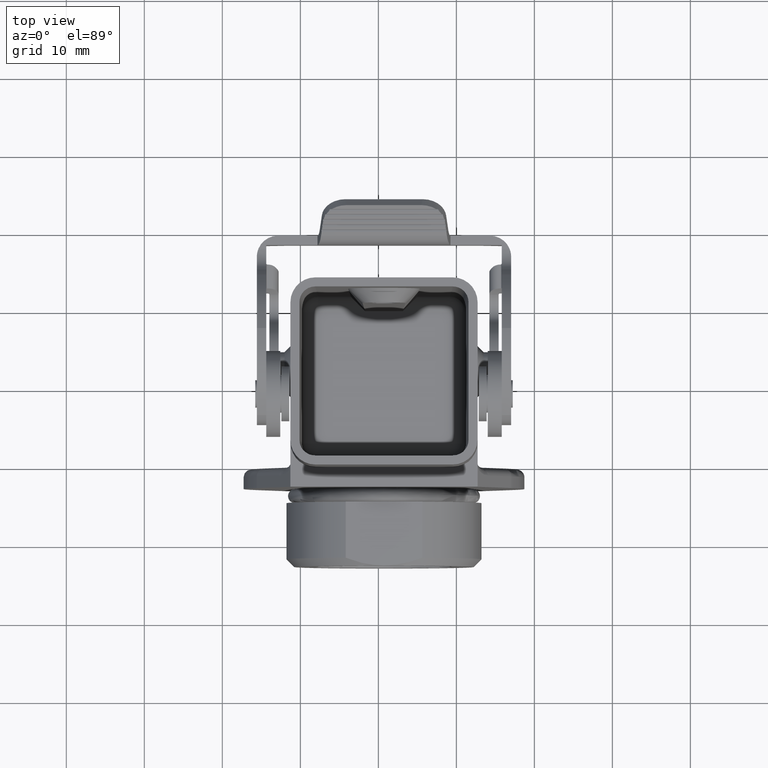
[diagram: clean part render]
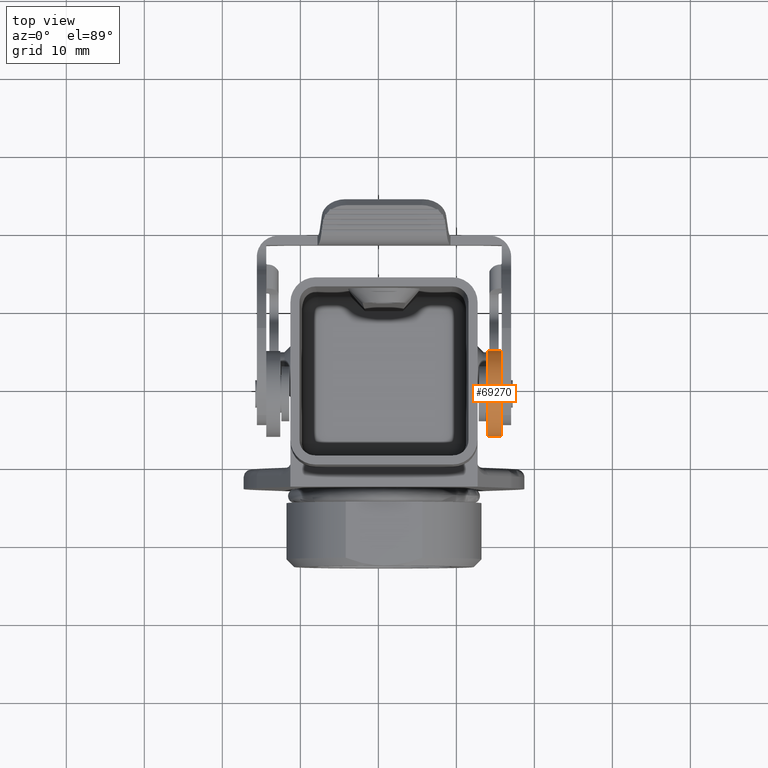
[diagram: same view with one face highlighted and labeled with its STEP entity id]
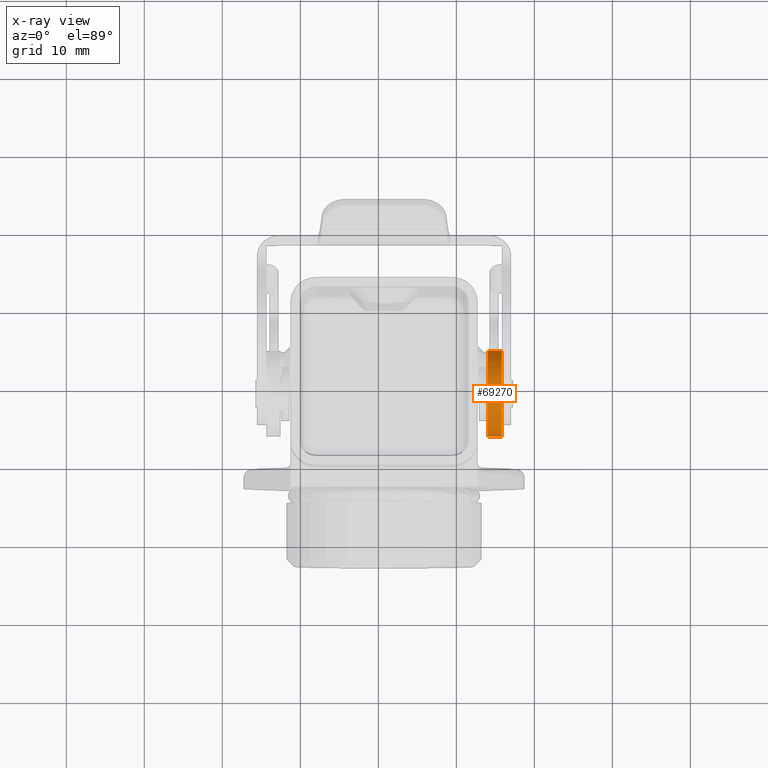
[diagram: x-ray of the same camera — body ghosted, the highlighted face saturated]
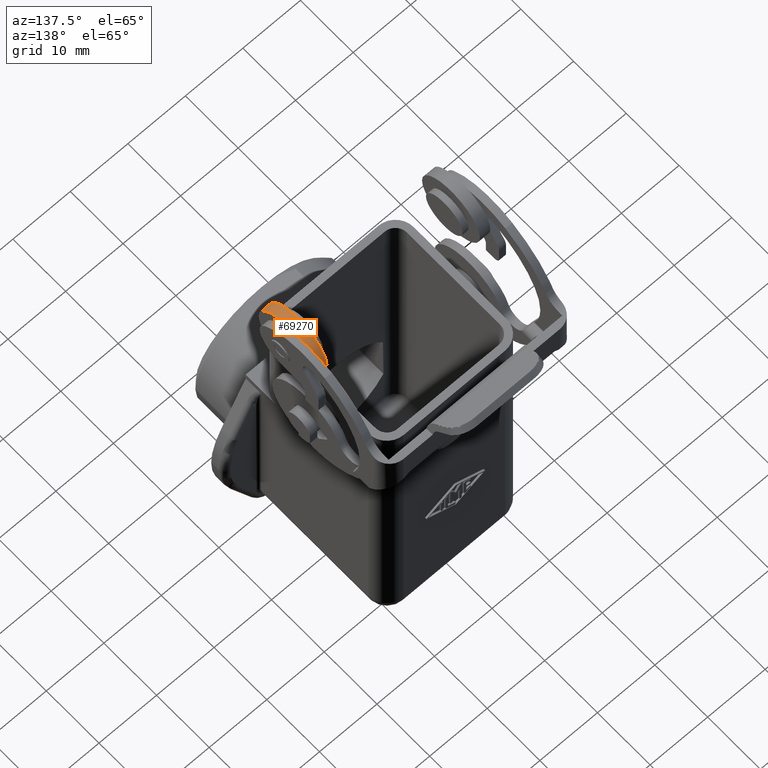
[diagram: same view with one face highlighted and labeled with its STEP entity id]
A machine part, top view. The second image highlights one B-rep face of the part: STEP entity #69270.
The next image is the same camera in x-ray: the body ghosted, the highlighted face saturated — about 0% of this face is hidden behind the body in this view.
A second angle (auxiliary view) of the same face is appended — the face is thin or edge-on in the first view.
In plain terms, the highlighted cylindrical surface (partial cylindrical patch) has radius 5.5 mm, axis along (1, -0, -0).
Its self-contained STEP definition (entity closure, byte-faithful):
#33700=CARTESIAN_POINT('',(44.067841872355,26.3662659228829,-3.E-15));
#33710=VERTEX_POINT('',#33700);
#33740=CARTESIAN_POINT('',(42.5864099933115,21.0695348944321,0.));
#33750=DIRECTION('',(0.,0.,1.));
#33760=DIRECTION('',(1.,0.,-0.));
#33770=AXIS2_PLACEMENT_3D('',#33740,#33750,#33760);
#33780=CIRCLE('',#33770,5.49999999999999);
#33790=CARTESIAN_POINT('',(47.3999088620375,23.7304047974474,-3.E-15));
#33800=VERTEX_POINT('',#33790);
#33810=EDGE_CURVE('',#33800,#33710,#33780,.T.);
#35890=CARTESIAN_POINT('',(42.5864099933115,21.0695348944321,
-2.66453525910038E-15));
#35900=DIRECTION('',(0.,0.,1.));
#35910=DIRECTION('',(1.,0.,-0.));
#35920=AXIS2_PLACEMENT_3D('',#35890,#35900,#35910);
#35930=CIRCLE('',#35920,5.49999999999999);
#35940=CARTESIAN_POINT('',(37.0864099933115,21.0695348944321,
-2.66453525910038E-15));
#35950=VERTEX_POINT('',#35940);
#35980=EDGE_CURVE('',#33710,#35950,#35930,.T.);
#66100=CARTESIAN_POINT('',(42.5864099933115,21.0695348944321,
-2.66453525910038E-15));
#66110=DIRECTION('',(0.,0.,1.));
#66120=DIRECTION('',(1.,0.,-0.));
#66130=AXIS2_PLACEMENT_3D('',#66100,#66110,#66120);
#66140=CIRCLE('',#66130,5.49999999999999);
#66150=CARTESIAN_POINT('',(48.0864099933115,21.0695348944321,
-2.66453525910038E-15));
#66160=VERTEX_POINT('',#66150);
#66230=EDGE_CURVE('',#66160,#33800,#66140,.T.);
#66350=CARTESIAN_POINT('',(42.5864099933115,21.0695348944321,-1.84500315
));
#66360=DIRECTION('',(0.,0.,1.));
#66370=DIRECTION('',(1.,0.,-0.));
#66380=AXIS2_PLACEMENT_3D('',#66350,#66360,#66370);
#66390=CYLINDRICAL_SURFACE('',#66380,5.49999999999999);
#66400=CARTESIAN_POINT('',(37.0864099933115,21.0695348944321,-1.84500315
));
#66410=DIRECTION('',(0.,0.,1.));
#66420=VECTOR('',#66410,1.);
#66430=LINE('',#66400,#66420);
#66440=CARTESIAN_POINT('',(37.0864099933115,21.0695348944321,-1.8));
#66450=VERTEX_POINT('',#66440);
#66460=EDGE_CURVE('',#66450,#35950,#66430,.T.);
#66510=CARTESIAN_POINT('',(48.0864099933115,21.0695348944321,-1.84500315
));
#66520=DIRECTION('',(0.,0.,1.));
#66530=VECTOR('',#66520,1.);
#66540=LINE('',#66510,#66530);
#66550=CARTESIAN_POINT('',(48.0864099933115,21.0695348944321,-1.8));
#66560=VERTEX_POINT('',#66550);
#66570=EDGE_CURVE('',#66560,#66160,#66540,.T.);
#66590=CARTESIAN_POINT('',(42.5864099933115,21.0695348944321,-1.8));
#66600=DIRECTION('',(0.,0.,1.));
#66610=DIRECTION('',(1.,0.,-0.));
#66620=AXIS2_PLACEMENT_3D('',#66590,#66600,#66610);
#66630=CIRCLE('',#66620,5.49999999999999);
#66810=EDGE_CURVE('',#66560,#66450,#66630,.T.);
#69190=ORIENTED_EDGE('',*,*,#66230,.F.);
#69200=ORIENTED_EDGE('',*,*,#33810,.F.);
#69210=ORIENTED_EDGE('',*,*,#35980,.F.);
#69220=ORIENTED_EDGE('',*,*,#66460,.T.);
#69230=ORIENTED_EDGE('',*,*,#66810,.T.);
#69240=ORIENTED_EDGE('',*,*,#66570,.F.);
#69250=EDGE_LOOP('',(#69240,#69230,#69220,#69210,#69200,#69190));
#69260=FACE_OUTER_BOUND('',#69250,.T.);
#69270=ADVANCED_FACE('',(#69260),#66390,.T.);